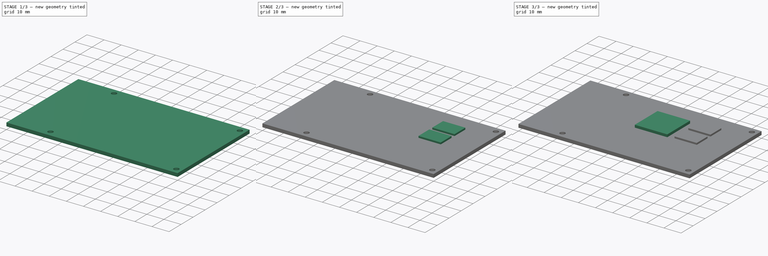
[diagram: build sequence overview — one tinted view per stage of 3, left to right]
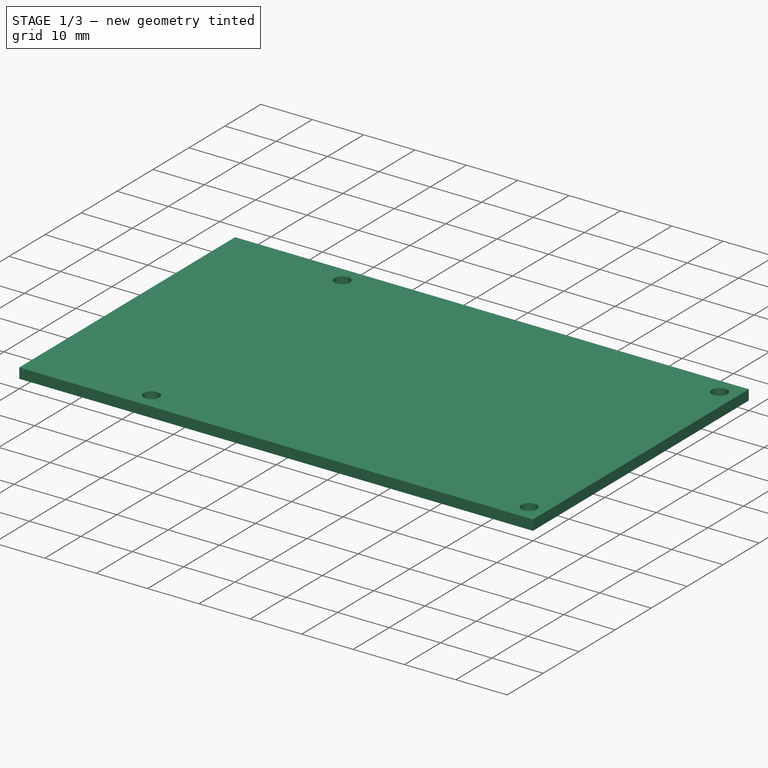
[diagram: stage 1 of 3 — iso view after this stage's code; geometry added in this stage tinted green]
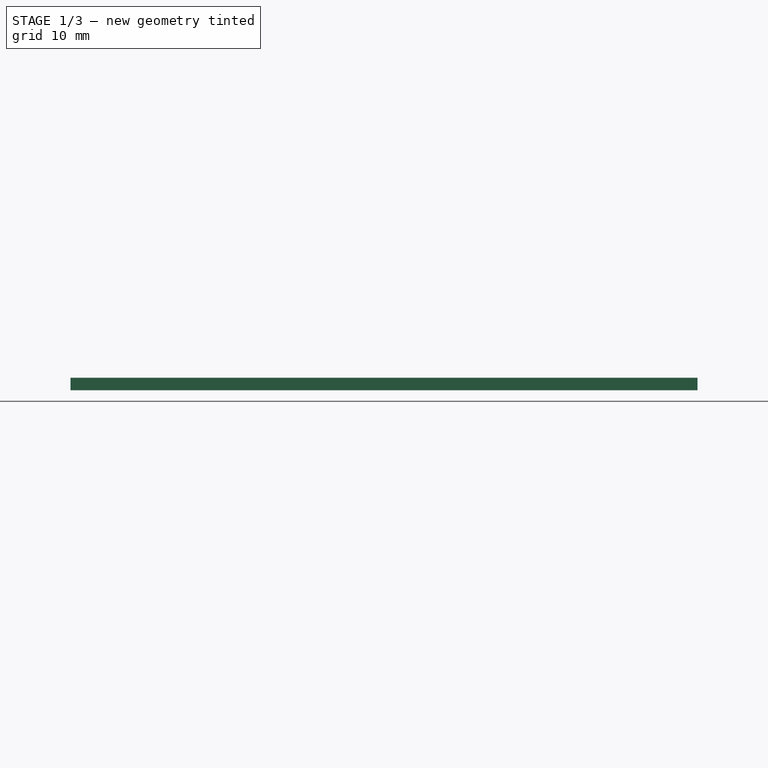
[diagram: stage 1 of 3 — front view after this stage's code; geometry added in this stage tinted green]
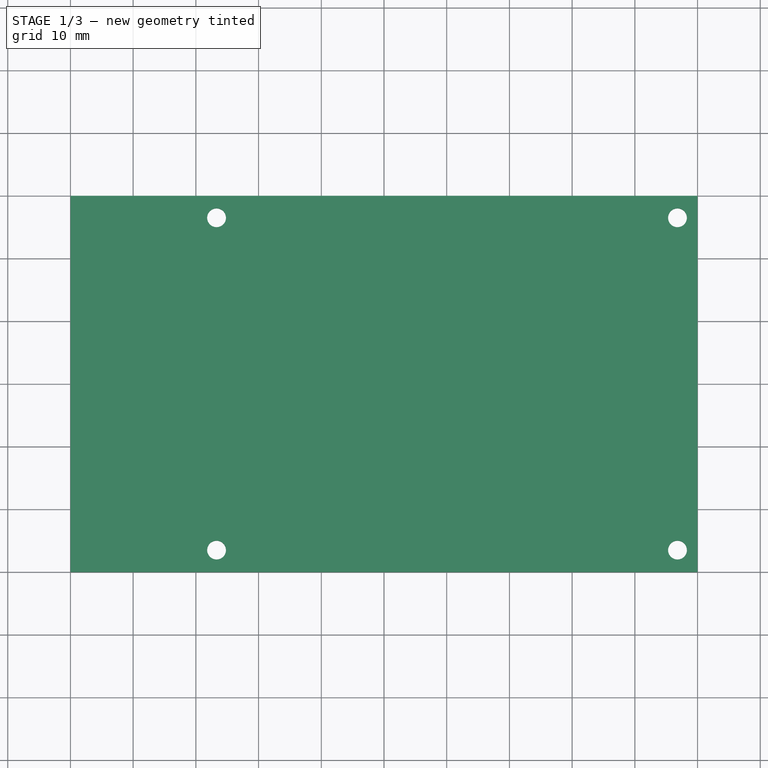
[diagram: stage 1 of 3 — top view after this stage's code; geometry added in this stage tinted green]
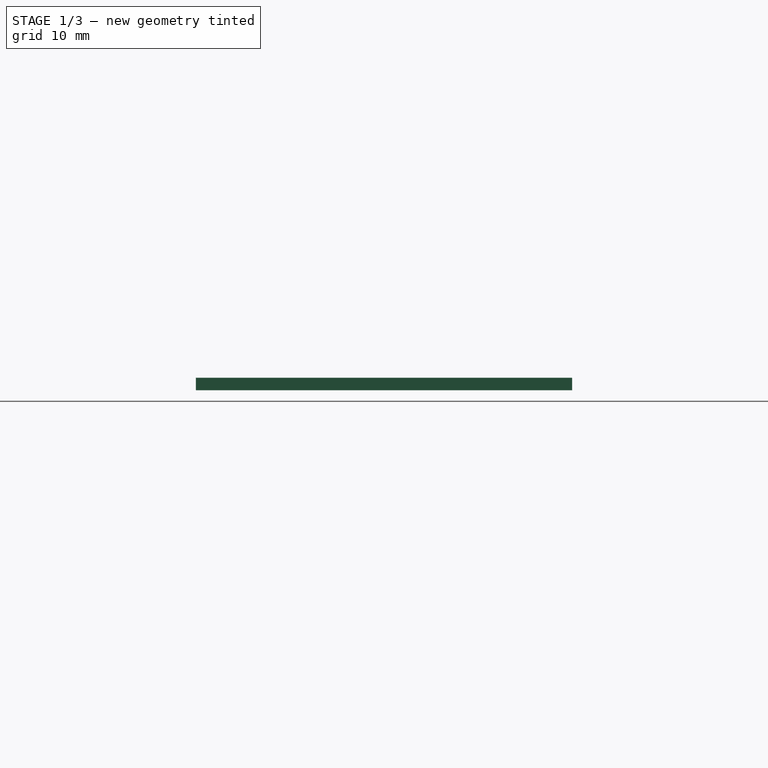
[diagram: stage 1 of 3 — right view after this stage's code; geometry added in this stage tinted green]
FCSTD DOCUMENT  (FreeCAD 0.14R3702 (Git))
Label: cubieboard2
License: CC-BY 3.0
LicenseURL: http://creativecommons.org/licenses/by/3.0/
objects: Part::Feature×17, Sketcher::SketchObject×4, PartDesign::Pad×3, PartDesign::Pocket×1, PartDesign::Fillet×1, Part::Fuse×1
note: 31 computed .brp shape members not serialized (recipe doc carries the construction recipe); baked Part::Feature solids carry a one-line shape summary decoded from their .brp

FEATURE [Sketcher::SketchObject] Sketch
  sketch-geometry (4):
    g0: LineSegment StartX=0 StartY=0 StartZ=0 EndX=100 EndY=0 EndZ=0
    g1: LineSegment StartX=100 StartY=0 StartZ=0 EndX=100 EndY=-60 EndZ=0
    g2: LineSegment StartX=100 StartY=-60 StartZ=0 EndX=0 EndY=-60 EndZ=0
    g3: LineSegment StartX=0 StartY=-60 StartZ=0 EndX=0 EndY=0 EndZ=0
  constraints (12):
    c: Coincident(g0,g1)
    c: Coincident(g1,g2)
    c: Coincident(g2,g3)
    c: Coincident(g3,g0)
    c: Horizontal(g0)
    c: Horizontal(g2)
    c: Vertical(g1)
    c: Vertical(g3)
    c: Tangent(g0,g-1)
    c: Tangent(g3,g-2)
    c: Distance(g0) = 100
    c: Distance(g1) = 60
FEATURE [PartDesign::Pad] Pad  label="PCB"
  Length = 2
  Length2 = 100
  Sketch = -> Sketch
  Type = 0
FEATURE [Sketcher::SketchObject] Sketch001
  ExternalGeometry = -> [Pad]
  Placement = pos=(0,0,2) rot=(0,0,1;0rad)
  Support = -> Pad [Face6]
  sketch-geometry (7):
    g0: Circle CenterX=23.3 CenterY=-3.5 CenterZ=0 NormalX=0 NormalY=0 NormalZ=1 Radius=1.5
    g1: Circle CenterX=96.8 CenterY=-3.5 CenterZ=0 NormalX=0 NormalY=0 NormalZ=1 Radius=1.5
    g2: Circle CenterX=23.3 CenterY=-56.5 CenterZ=0 NormalX=0 NormalY=0 NormalZ=1 Radius=1.5
    g3: Circle CenterX=96.8 CenterY=-56.5 CenterZ=0 NormalX=0 NormalY=0 NormalZ=1 Radius=1.5
    g4: LineSegment [constr] StartX=23.3 StartY=-3.5 StartZ=0 EndX=96.8 EndY=-3.5 EndZ=0
    g5: LineSegment [constr] StartX=23.3 StartY=-3.5 StartZ=0 EndX=23.3 EndY=-56.5 EndZ=0
    g6: LineSegment [constr] StartX=96.8 StartY=-3.5 StartZ=0 EndX=96.8 EndY=-56.5 EndZ=0
  constraints (18):
    c: Equal(g0,g1)
    c: Equal(g1,g3)
    c: Equal(g3,g2)
    c: Coincident(g4,g0)
    c: Coincident(g4,g1)
    c: Horizontal(g4)
    c: Coincident(g5,g0)
    c: Coincident(g5,g2)
    c: Vertical(g5)
    c: Coincident(g6,g1)
    c: Vertical(g6)
    c: Equal(g5,g6)
    c: Distance(g4) = 73.5
    c: DistanceX(g1,g-4) = 3.2
    c: DistanceY(g1,g-4) = 3.5
    c: Radius(g1) = 1.5
    c: DistanceY(g-3,g6) = 3.5
    c: Coincident(g6,g3)
FEATURE [PartDesign::Pocket] Pocket  label="Percages"
  Length = 5
  Sketch = -> Sketch001
  Type = 1
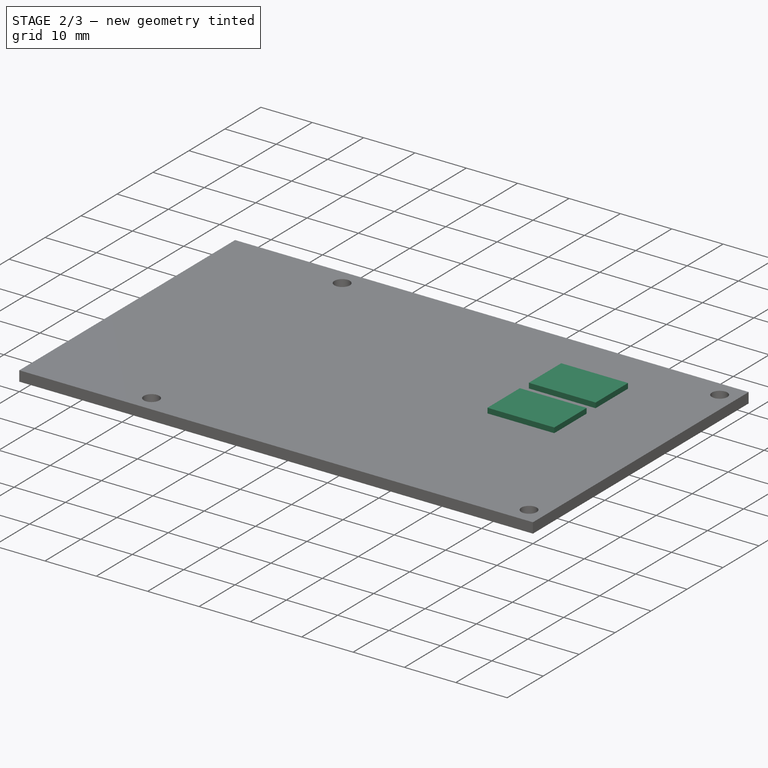
[diagram: stage 2 of 3 — iso view after this stage's code; geometry added in this stage tinted green]
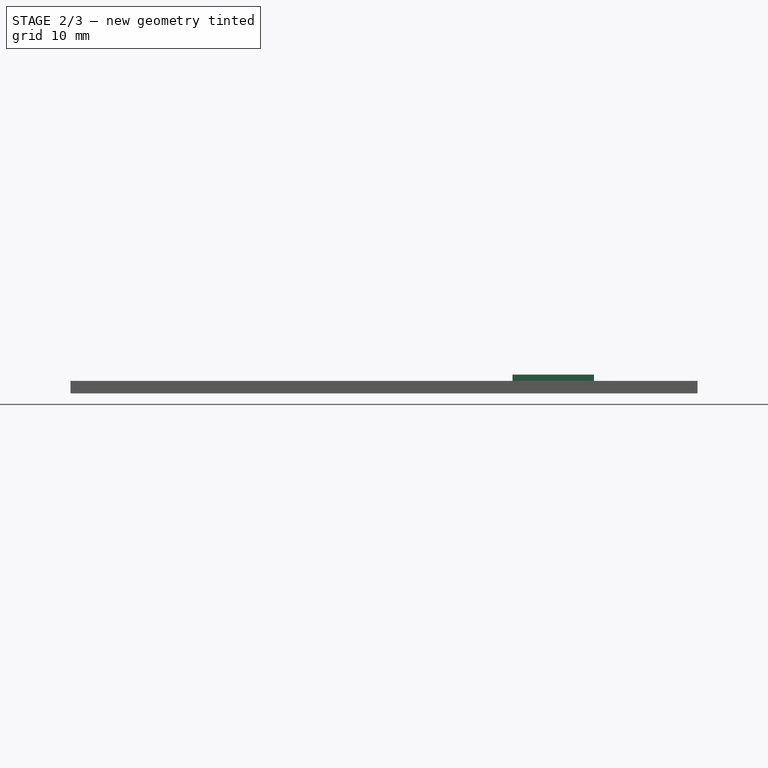
[diagram: stage 2 of 3 — front view after this stage's code; geometry added in this stage tinted green]
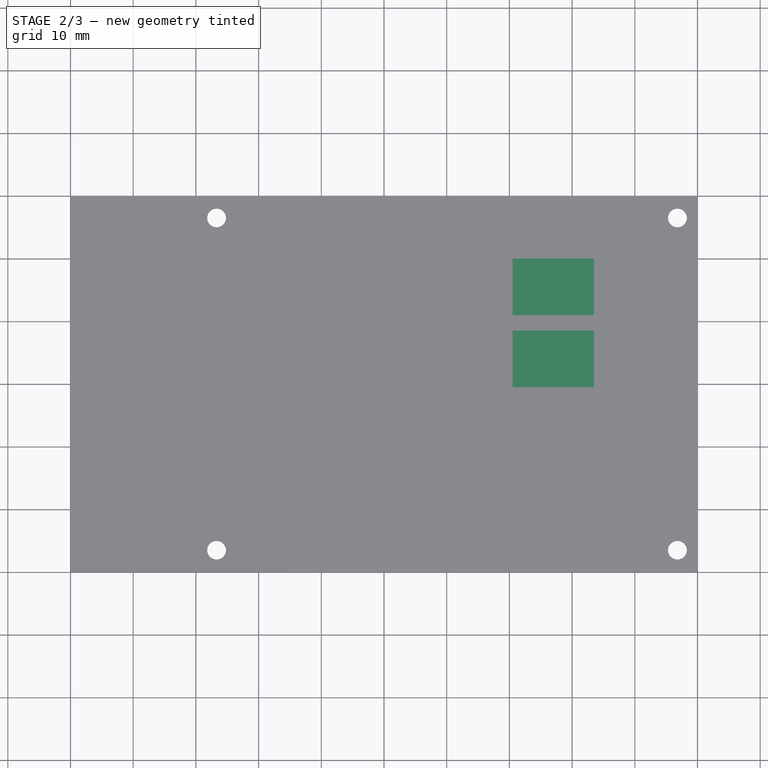
[diagram: stage 2 of 3 — top view after this stage's code; geometry added in this stage tinted green]
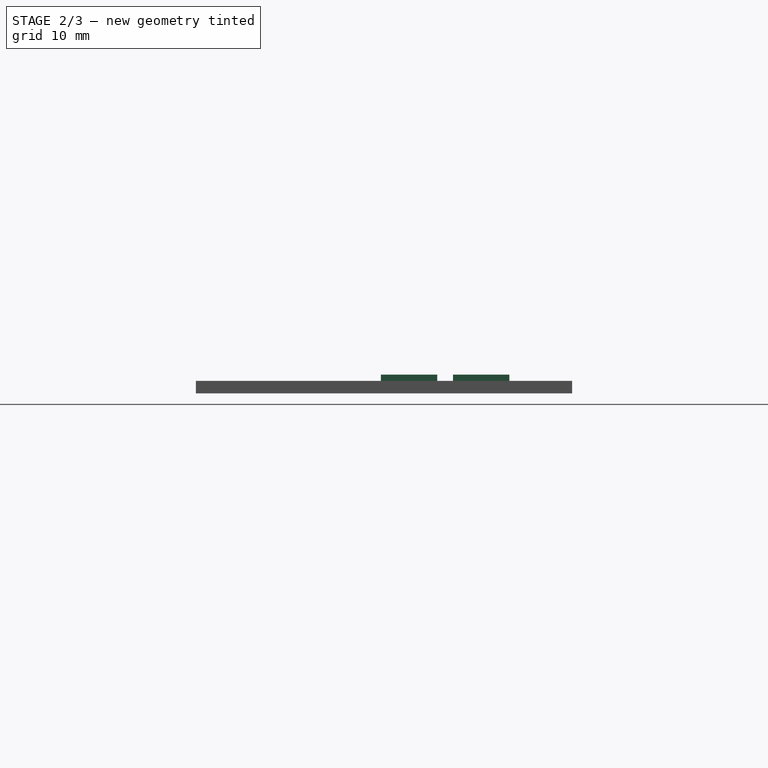
[diagram: stage 2 of 3 — right view after this stage's code; geometry added in this stage tinted green]
FEATURE [PartDesign::Fillet] Fillet
  Base = -> Pocket [Edge2,Edge1,Edge8,Edge5]
  Radius = 0.5
FEATURE [Sketcher::SketchObject] Sketch003
  ExternalGeometry = -> [Pocket]
  Placement = pos=(0,0,2) rot=(0,0,1;0rad)
  Support = -> Pocket [Face5]
  sketch-geometry (8):
    g0: LineSegment StartX=70.5 StartY=-10 StartZ=0 EndX=83.5 EndY=-10 EndZ=0
    g1: LineSegment StartX=83.5 StartY=-10 StartZ=0 EndX=83.5 EndY=-19 EndZ=0
    g2: LineSegment StartX=83.5 StartY=-19 StartZ=0 EndX=70.5 EndY=-19 EndZ=0
    g3: LineSegment StartX=70.5 StartY=-19 StartZ=0 EndX=70.5 EndY=-10 EndZ=0
    g4: LineSegment StartX=70.5 StartY=-21.5 StartZ=0 EndX=83.5 EndY=-21.5 EndZ=0
    g5: LineSegment StartX=83.5 StartY=-21.5 StartZ=0 EndX=83.5 EndY=-30.5 EndZ=0
    g6: LineSegment StartX=83.5 StartY=-30.5 StartZ=0 EndX=70.5 EndY=-30.5 EndZ=0
    g7: LineSegment StartX=70.5 StartY=-30.5 StartZ=0 EndX=70.5 EndY=-21.5 EndZ=0
  constraints (24):
    c: Coincident(g0,g1)
    c: Coincident(g1,g2)
    c: Coincident(g2,g3)
    c: Coincident(g3,g0)
    c: Horizontal(g0)
    c: Horizontal(g2)
    c: Vertical(g1)
    c: Vertical(g3)
    c: Coincident(g4,g5)
    c: Coincident(g5,g6)
    c: Coincident(g6,g7)
    c: Coincident(g7,g4)
    c: Horizontal(g4)
    c: Horizontal(g6)
    c: Vertical(g5)
    c: Vertical(g7)
    c: Tangent(g5,g1)
    c: Equal(g4,g2)
    c: DistanceX(g0) = 13
    c: DistanceY(g1) = -9
    c: Equal(g5,g1)
    c: DistanceY(g4,g1) = 2.5
    c: DistanceX(g0,g-3) = 16.5
    c: DistanceY(g-3,g0) = -10
FEATURE [PartDesign::Pad] Pad002
  Length = 1
  Length2 = 100
  Sketch = -> Sketch003
  Type = 0
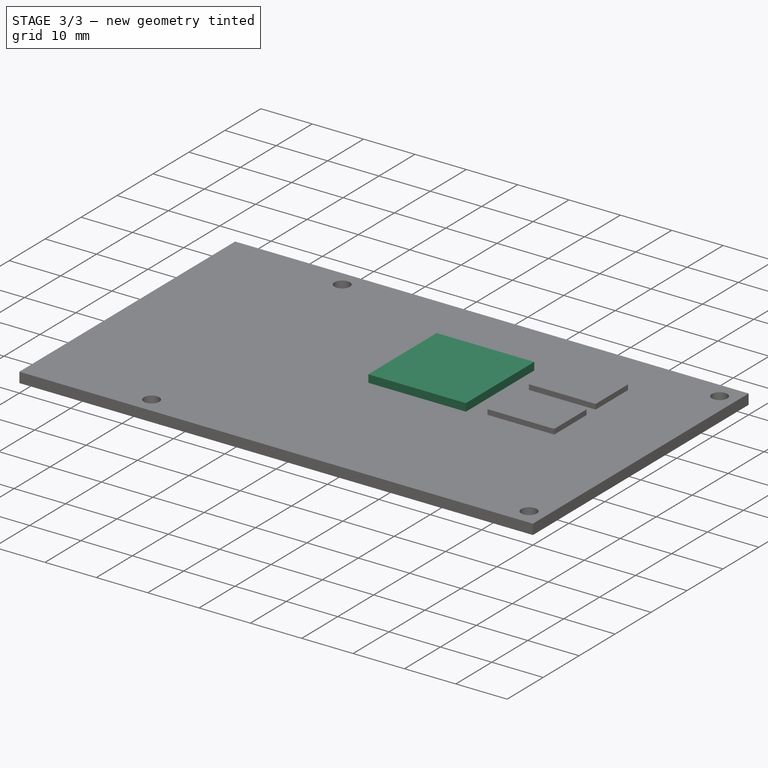
[diagram: stage 3 of 3 — iso view after this stage's code; geometry added in this stage tinted green]
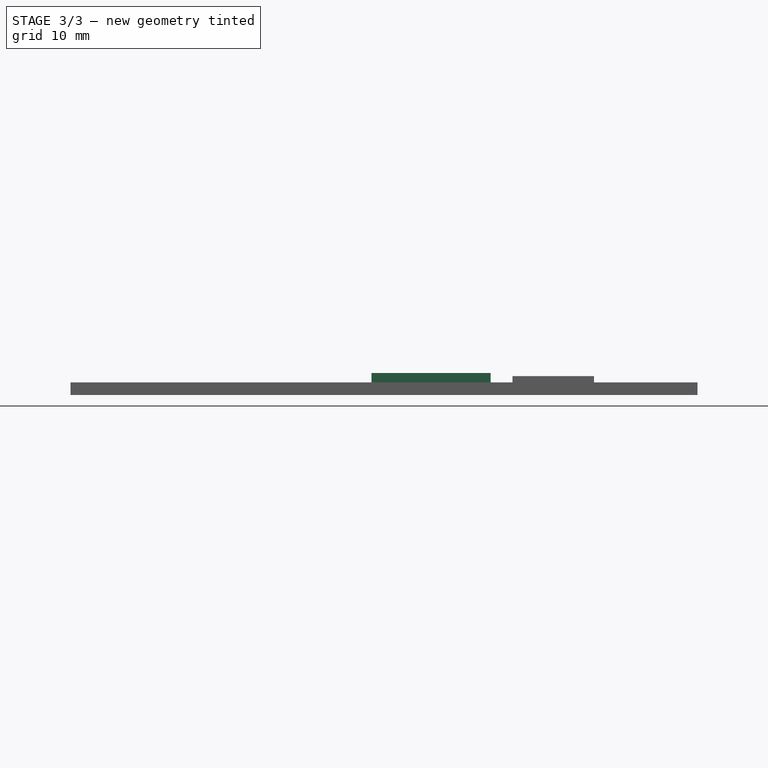
[diagram: stage 3 of 3 — front view after this stage's code; geometry added in this stage tinted green]
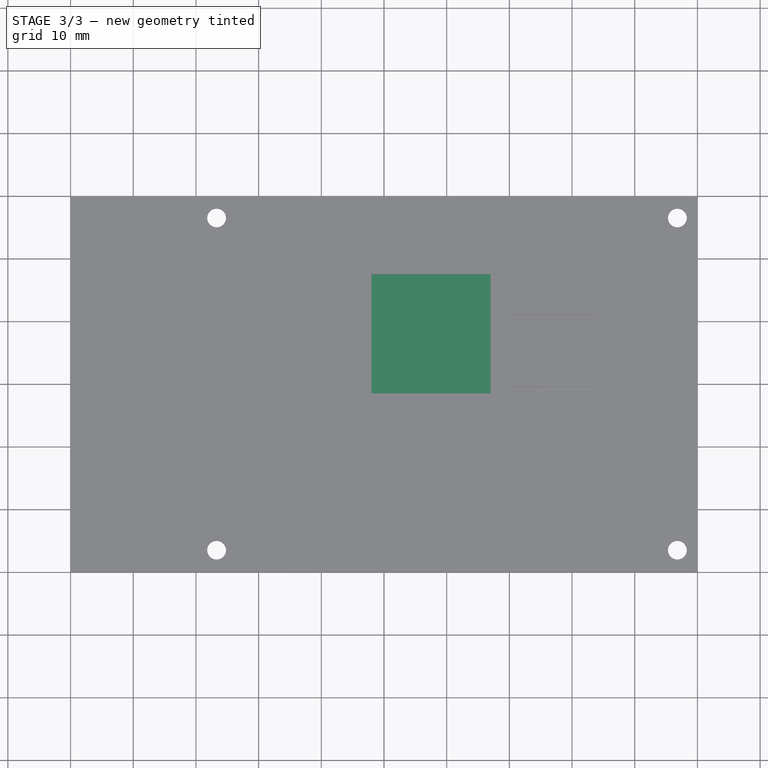
[diagram: stage 3 of 3 — top view after this stage's code; geometry added in this stage tinted green]
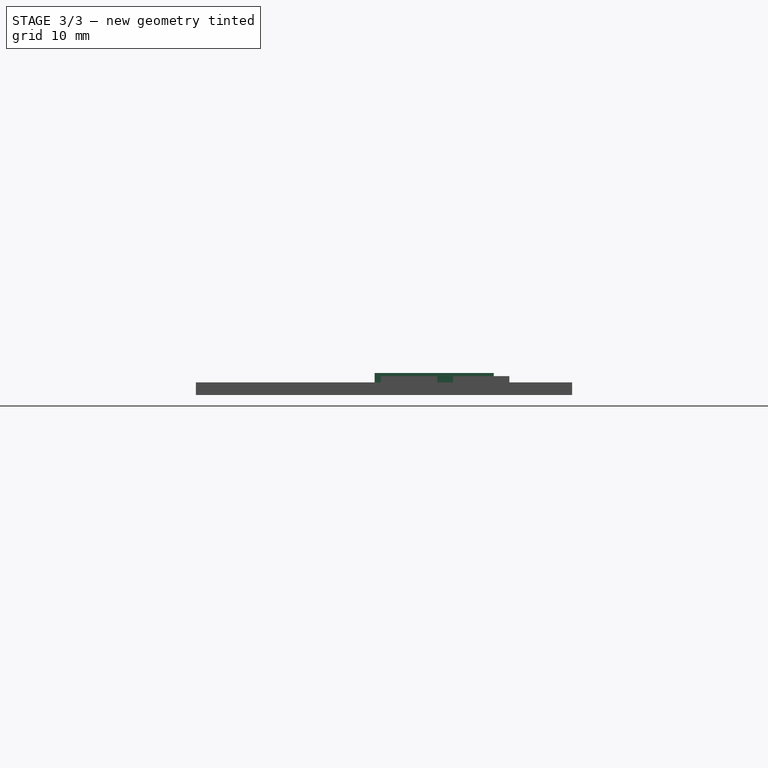
[diagram: stage 3 of 3 — right view after this stage's code; geometry added in this stage tinted green]
FEATURE [Sketcher::SketchObject] Sketch002
  ExternalGeometry = -> [Fillet]
  Placement = pos=(0,0,2) rot=(0,0,1;0rad)
  Support = -> Fillet [Face5]
  sketch-geometry (4):
    g0: LineSegment StartX=48 StartY=-12.5 StartZ=0 EndX=67 EndY=-12.5 EndZ=0
    g1: LineSegment StartX=67 StartY=-12.5 StartZ=0 EndX=67 EndY=-31.5 EndZ=0
    g2: LineSegment StartX=67 StartY=-31.5 StartZ=0 EndX=48 EndY=-31.5 EndZ=0
    g3: LineSegment StartX=48 StartY=-31.5 StartZ=0 EndX=48 EndY=-12.5 EndZ=0
  constraints (12):
    c: Coincident(g0,g1)
    c: Coincident(g1,g2)
    c: Coincident(g2,g3)
    c: Coincident(g3,g0)
    c: Horizontal(g0)
    c: Horizontal(g2)
    c: Vertical(g1)
    c: Vertical(g3)
    c: DistanceX(g0) = 19
    c: DistanceY(g1) = -19
    c: DistanceY(g-1,g0) = -12.5
    c: DistanceX(g0,g-3) = 33
FEATURE [PartDesign::Pad] Pad001
  Length = 1.5
  Length2 = 100
  Sketch = -> Sketch002
  Type = 0
FEATURE [Part::Fuse] Fusion  label="pcb"
  Base = -> Pad001
  Tool = -> Pad002
FEATURE [Part::Feature] Part__Feature001  label="Heat-sink"
  Placement = pos=(57.5,-22,3.5) rot=(0,0,1;0rad)
  shape: bbox 19 x 19 x 5 mm, 212 faces (baked)
FEATURE [Part::Feature] Shape  label="GPIO-2x24-2mm-pitch"
  Placement = pos=(44.5,-57.75,4) rot=(1,0,0;3.14159rad)
  shape: bbox 48 x 4 x 10 mm, 1250 faces (baked)
FEATURE [Part::Feature] Shape001  label="GPIO-2x24-2mm-pitch-bis"
  Placement = pos=(44.5,-4.5,4) rot=(1,0,0;3.14159rad)
  shape: bbox 48 x 4 x 10 mm, 1250 faces (baked)
FEATURE [Part::Feature] Shape002  label="micro-usb-b-male"
  Placement = pos=(93,-29.65,2) rot=(0.57735,0.57735,0.57735;2.0944rad)
  shape: bbox 9.511 x 9.9 x 5.02 mm, 477 faces, 7 solids (baked)
FEATURE [Part::Feature] Shape003  label="TTL"
  Placement = pos=(46.5,-42,2) rot=(0,0,1;1.5708rad)
  shape: bbox 2.54 x 10.16 x 11.2 mm, 144 faces, 8 solids (baked)
FEATURE [Part::Feature] Shape004  label="Sata"
  Placement = pos=(35.5,-3.5,2) rot=(0,0,1;3.14159rad)
  shape: bbox 17 x 6.5 x 11.5 mm, 129 faces (baked)
FEATURE [Part::Feature] Shape005  label="Ethernet"
  Placement = pos=(83,-36.5,2) rot=(0,0,1;0rad)
  shape: bbox 21.3 x 15.9 x 17.28 mm, 75 faces (baked)
FEATURE [Part::Feature] Shape006  label="HDMI"
  Placement = pos=(11,-40,2) rot=(0,0,1;3.14159rad)
  shape: bbox 12.15 x 15 x 9.38 mm, 171 faces (baked)
FEATURE [Part::Feature] Shape007  label="USB-type-A"
  Placement = pos=(43,-44,2) rot=(0,0,-1;1.5708rad)
  shape: bbox 15.25 x 17.3 x 18.5 mm, 136 faces (baked)
FEATURE [Part::Feature] Part__Feature  label="SD-card"
  Placement = pos=(4.5,-43,2) rot=(0,0,-1;1.5708rad)
  shape: bbox 15 x 14.5 x 2.184 mm, 9 faces (baked)
FEATURE [Part::Feature] Shape008  label="3-5mm-audio-jack"
  Placement = pos=(88,-21.5,0) rot=(1,0,0;3.14159rad)
  shape: bbox 14 x 9 x 5 mm, 35 faces (baked)
FEATURE [Part::Feature] Shape009  label="3-5mm-audio-jack-2"
  Placement = pos=(88,-15,2) rot=(0,0,1;0rad)
  shape: bbox 14 x 9 x 5 mm, 35 faces (baked)
FEATURE [Part::Feature] Shape010  label="Sata_5V"
  Placement = pos=(25,-13,2) rot=(0,0,1;3.14159rad)
  shape: bbox 7.5 x 5.6 x 10 mm, 60 faces (baked)
FEATURE [Part::Feature] Part__Feature002  label="DC5V-2A"
  Placement = pos=(12,-9,2) rot=(0,0,1;3.14159rad)
  shape: bbox 12 x 7.5 x 5.5 mm, 11 faces (baked)
FEATURE [Part::Feature] Part__Feature003  label="Button"
  Placement = pos=(3,-23,2) rot=(-0.57735,-0.57735,0.57735;2.0944rad)
  shape: bbox 4.5 x 7 x 4.5 mm, 27 faces (baked)
FEATURE [Part::Feature] Part__Feature004  label="FEL"
  Placement = pos=(97,-33.25,0) rot=(0.57735,0.57735,0.57735;2.0944rad)
  shape: bbox 4.5 x 7 x 4.5 mm, 27 faces (baked)
FEATURE [Part::Feature] Part__Feature005  label="IR"
  Placement = pos=(14,-1,4) rot=(0,0,1;0rad)
  shape: bbox 5 x 3 x 10 mm, 38 faces (baked)
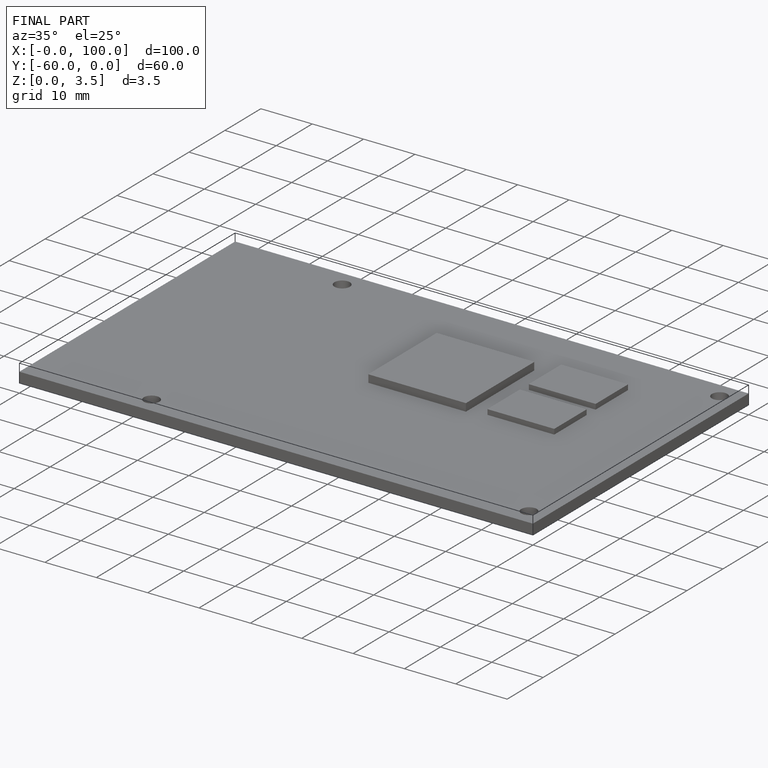
[diagram: finished part — iso view with bounding-box wireframe]
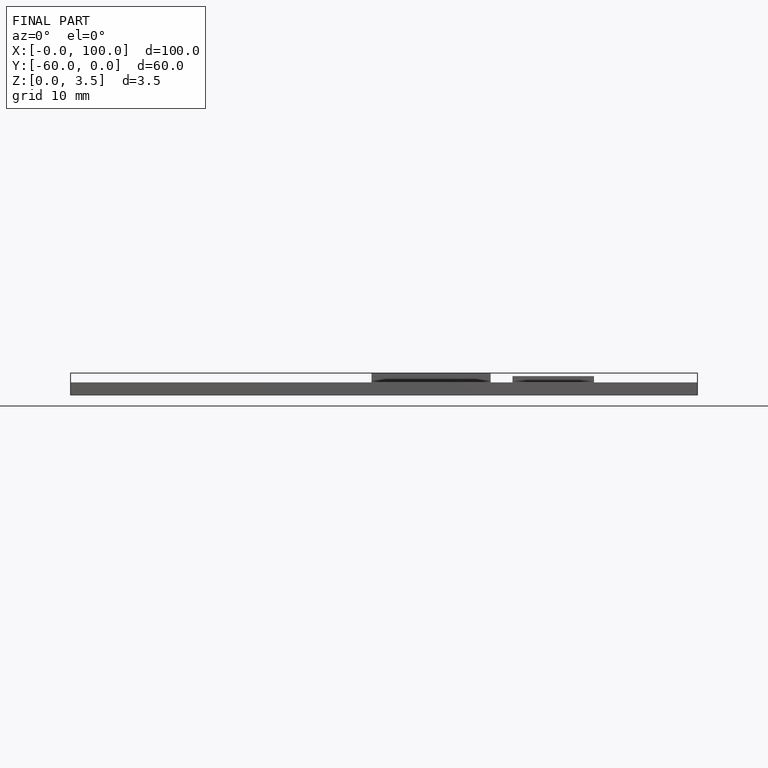
[diagram: finished part — front view with bounding-box wireframe]
